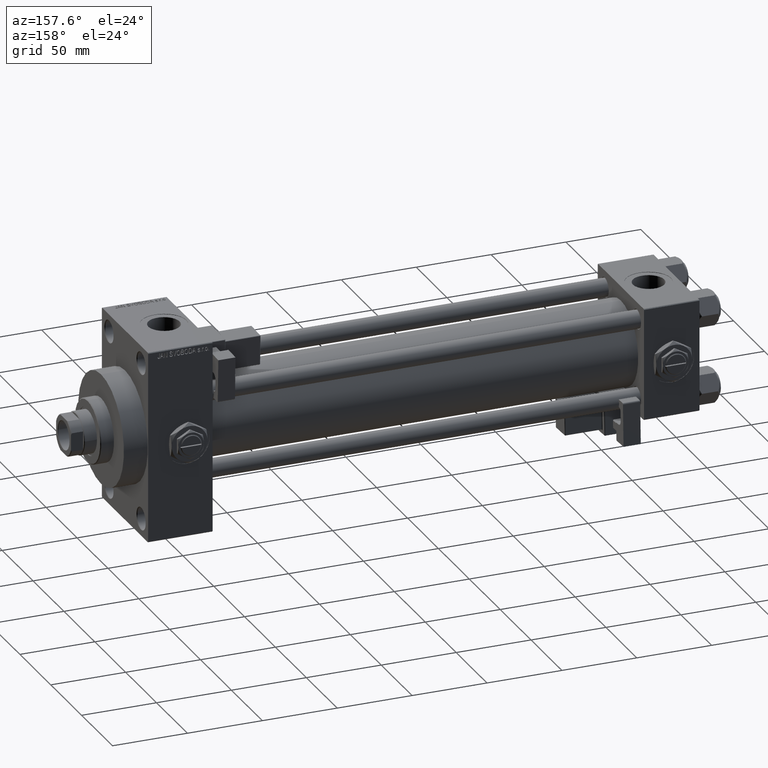
[diagram: clean part render]
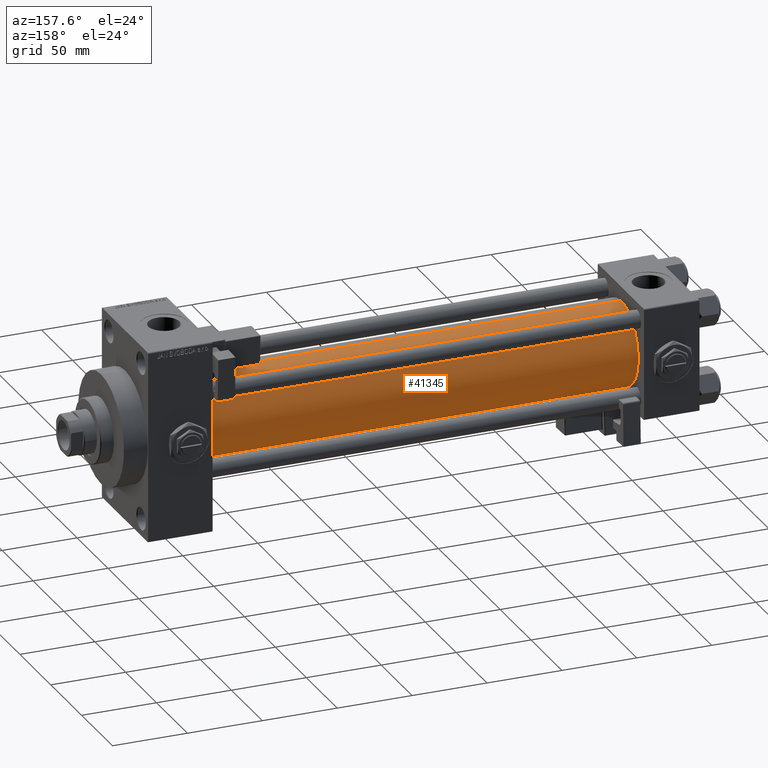
[diagram: same view with one face highlighted and labeled with its STEP entity id]
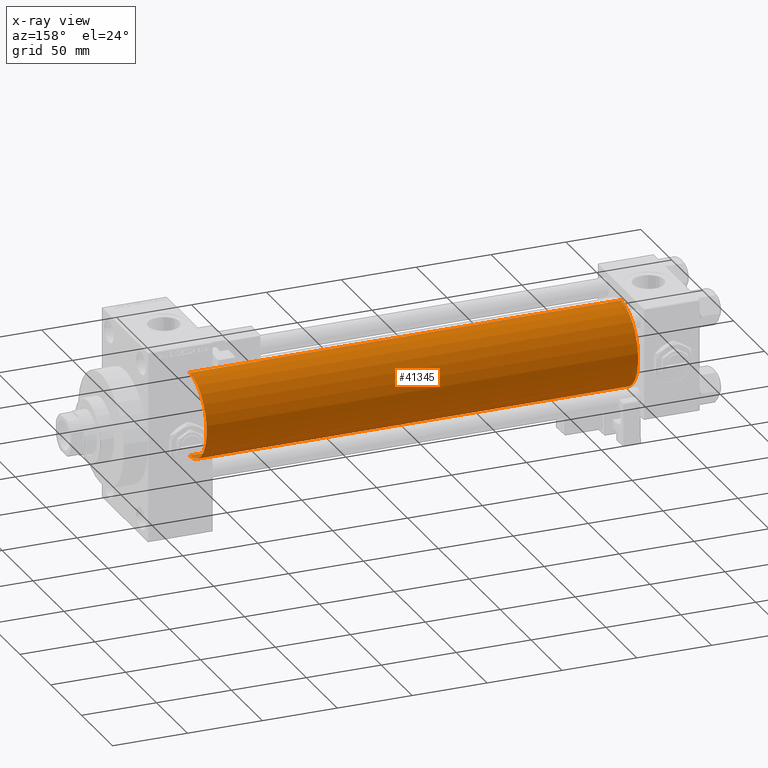
[diagram: x-ray of the same camera — body ghosted, the highlighted face saturated]
A machine part, auxiliary view. The second image highlights one B-rep face of the part: STEP entity #41345.
The next image is the same camera in x-ray: the body ghosted, the highlighted face saturated — about 0% of this face is hidden behind the body in this view.
In plain terms, the highlighted cylindrical surface (partial cylindrical patch) has radius 28 mm, axis along (-1, -0, -0).
Its self-contained STEP definition (entity closure, byte-faithful):
#1833 = EDGE_CURVE ( 'NONE', #20044, #15157, #26128, .T. ) ;
#3753 = DIRECTION ( 'NONE',  ( 1.000000000000000000, 0.000000000000000000, 0.000000000000000000 ) ) ;
#3791 = VERTEX_POINT ( 'NONE', #25680 ) ;
#4669 = EDGE_CURVE ( 'NONE', #3791, #30598, #22894, .T. ) ;
#6333 = LINE ( 'NONE', #49556, #14023 ) ;
#6530 = CARTESIAN_POINT ( 'NONE',  ( 324.9999999999999432, -2.602085213965210642E-15, 28.00000000000000000 ) ) ;
#7060 = CARTESIAN_POINT ( 'NONE',  ( 324.9999999999999432, -2.602085213965210642E-15, 0.000000000000000000 ) ) ;
#7331 = CARTESIAN_POINT ( 'NONE',  ( 36.99999999999997868, -2.602085213965210642E-15, 28.00000000000000000 ) ) ;
#7504 = DIRECTION ( 'NONE',  ( 1.000000000000000000, -0.000000000000000000, 0.000000000000000000 ) ) ;
#9977 = AXIS2_PLACEMENT_3D ( 'NONE', #7060, #26861, #34669 ) ;
#11416 = CARTESIAN_POINT ( 'NONE',  ( 36.99999999999997868, -2.602085213965210642E-15, 0.000000000000000000 ) ) ;
#13938 = ORIENTED_EDGE ( 'NONE', *, *, #4669, .F. ) ;
#14023 = VECTOR ( 'NONE', #21712, 1000.000000000000000 ) ;
#15157 = VERTEX_POINT ( 'NONE', #7331 ) ;
#15253 = ORIENTED_EDGE ( 'NONE', *, *, #1833, .T. ) ;
#18807 = CYLINDRICAL_SURFACE ( 'NONE', #9977, 28.00000000000000000 ) ;
#19463 = AXIS2_PLACEMENT_3D ( 'NONE', #11416, #7504, #23395 ) ;
#20044 = VERTEX_POINT ( 'NONE', #44777 ) ;
#21339 = DIRECTION ( 'NONE',  ( -1.000000000000000000, -0.000000000000000000, -0.000000000000000000 ) ) ;
#21712 = DIRECTION ( 'NONE',  ( -1.000000000000000000, -0.000000000000000000, -0.000000000000000000 ) ) ;
#22708 = FACE_OUTER_BOUND ( 'NONE', #33696, .T. ) ;
#22894 = CIRCLE ( 'NONE', #39526, 28.00000000000000000 ) ;
#23052 = CARTESIAN_POINT ( 'NONE',  ( 324.9999999999999432, -2.602085213965210642E-15, 0.000000000000000000 ) ) ;
#23395 = DIRECTION ( 'NONE',  ( 0.000000000000000000, 0.000000000000000000, 1.000000000000000000 ) ) ;
#25680 = CARTESIAN_POINT ( 'NONE',  ( 324.9999999999999432, 8.269258236473784371E-16, -28.00000000000000000 ) ) ;
#25764 = CARTESIAN_POINT ( 'NONE',  ( 324.9999999999999432, -2.602085213965210642E-15, 28.00000000000000000 ) ) ;
#26128 = CIRCLE ( 'NONE', #19463, 28.00000000000000000 ) ;
#26861 = DIRECTION ( 'NONE',  ( -1.000000000000000000, -0.000000000000000000, -0.000000000000000000 ) ) ;
#28501 = VECTOR ( 'NONE', #21339, 1000.000000000000000 ) ;
#30598 = VERTEX_POINT ( 'NONE', #6530 ) ;
#33696 = EDGE_LOOP ( 'NONE', ( #13938, #44138, #15253, #43029 ) ) ;
#34669 = DIRECTION ( 'NONE',  ( 0.000000000000000000, 0.000000000000000000, 1.000000000000000000 ) ) ;
#37887 = EDGE_CURVE ( 'NONE', #3791, #20044, #6333, .T. ) ;
#39526 = AXIS2_PLACEMENT_3D ( 'NONE', #23052, #3753, #39684 ) ;
#39684 = DIRECTION ( 'NONE',  ( 0.000000000000000000, 0.000000000000000000, -1.000000000000000000 ) ) ;
#40848 = LINE ( 'NONE', #25764, #28501 ) ;
#41345 = ADVANCED_FACE ( 'NONE', ( #22708 ), #18807, .T. ) ;
#43029 = ORIENTED_EDGE ( 'NONE', *, *, #45804, .F. ) ;
#44138 = ORIENTED_EDGE ( 'NONE', *, *, #37887, .T. ) ;
#44777 = CARTESIAN_POINT ( 'NONE',  ( 36.99999999999997868, 8.269258236473784371E-16, -28.00000000000000000 ) ) ;
#45804 = EDGE_CURVE ( 'NONE', #30598, #15157, #40848, .T. ) ;
#49556 = CARTESIAN_POINT ( 'NONE',  ( 324.9999999999999432, 8.269258236473784371E-16, -28.00000000000000000 ) ) ;